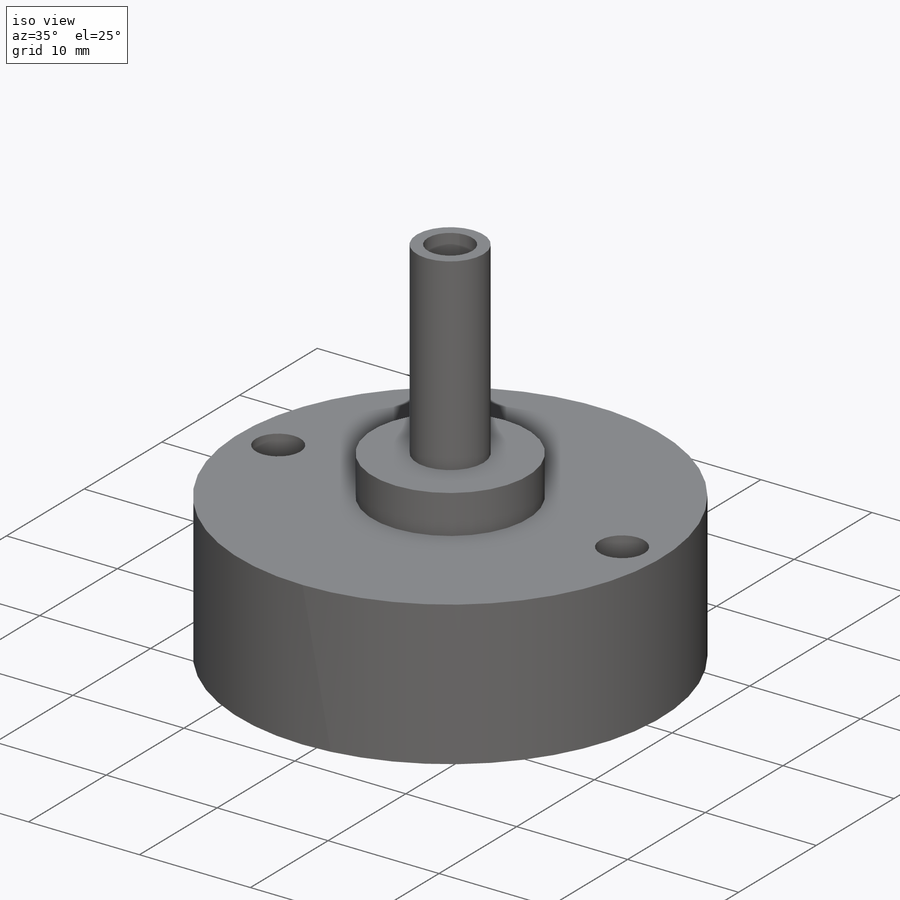
[diagram: iso view]
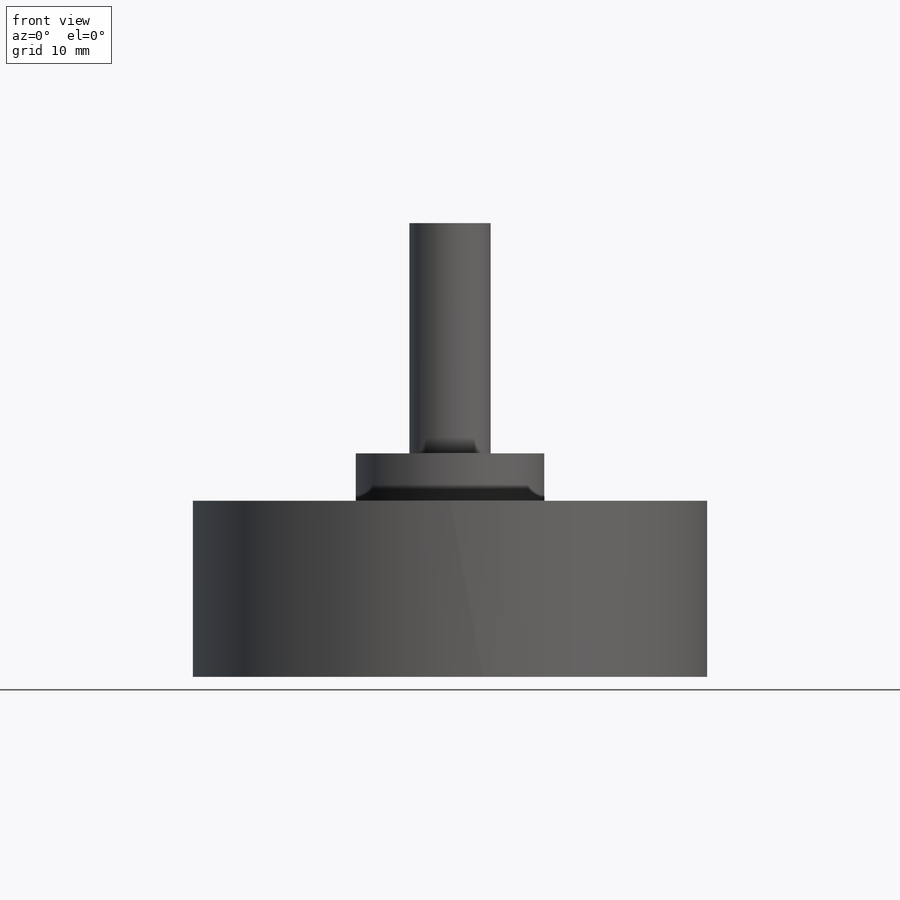
[diagram: front view]
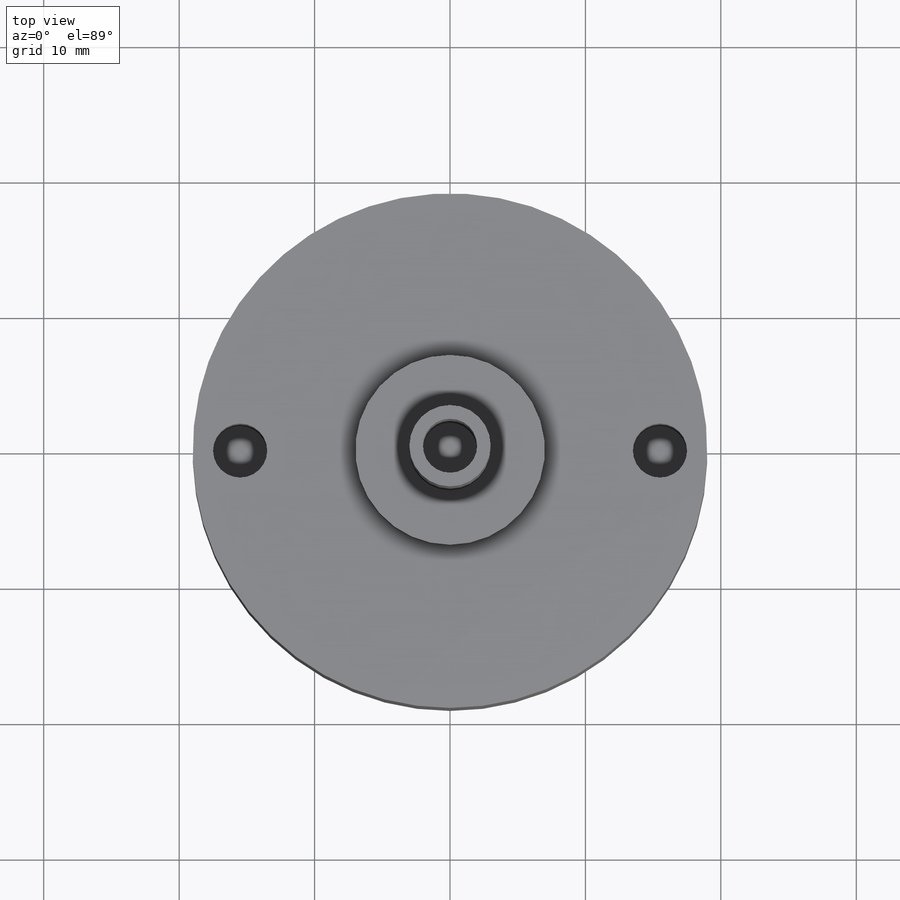
[diagram: top view]
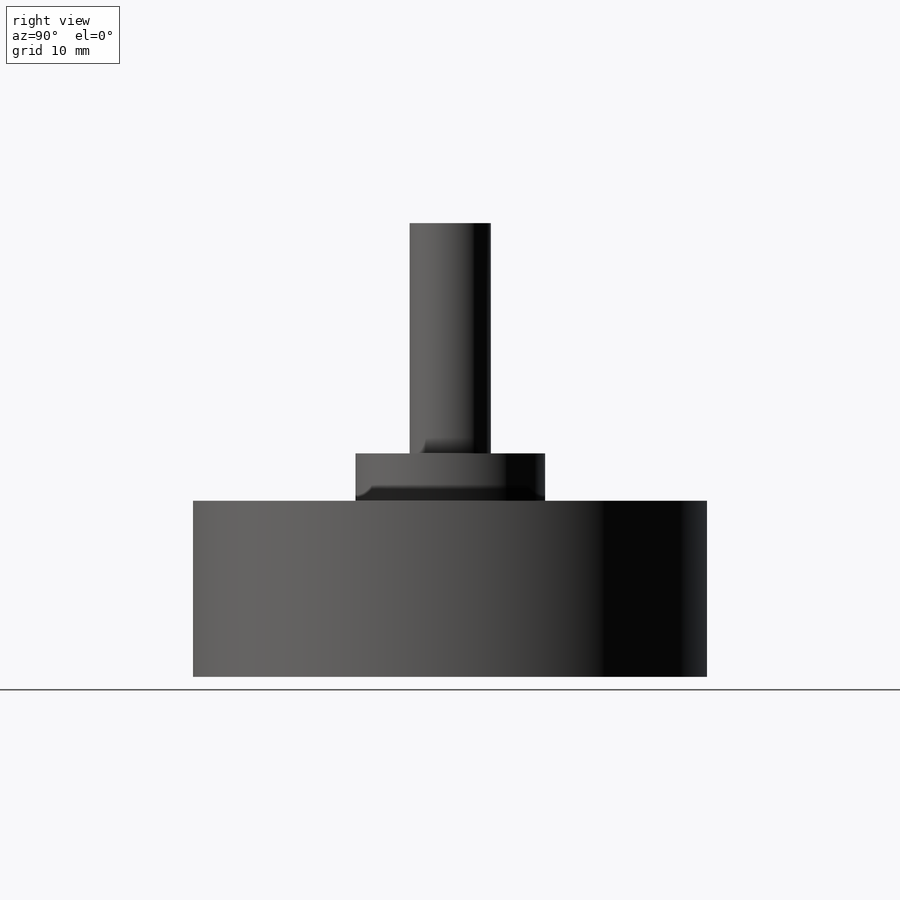
[diagram: right view]
SOLIDWORKS PART (.sldprt)
format: sldprt  version: not decoded by parser v0  size: 157,696 bytes
history: native  units: mm
features: sketch x4, plane x3, extrude x3, material x1, cut_extrude x1 (+10 scaffold rows collapsed)
feature tree (22):
  scaffold x10  (default folders/planes/origin — collapsed)
  material  "Malzeme <belirli değil>"
  plane  "Ön Düzlem"
  plane  "Üst Düzlem"
  plane  "Sağ Düzlem"
  sketch  "Çizim1"  dims[D1=38.0mm]
  extrude  "Yükseklik-Ekstrüzyon1"  Depth=13mm
  sketch  "Çizim2"  dims[c1.D1=~1.438285mm c1.D2=~1.438285mm c1.D3=4.0mm c2.D1=31.0mm c2.D2=15.5mm]
  cut_extrude  "Kes-Ekstrüzyon1"  Depth=10mm
  sketch  "Çizim3"  dims[D1=14.0mm]
  extrude  "Yükseklik-Ekstrüzyon2"  Depth=3.5mm
  sketch  "Çizim4"  dims[D1=6.0mm D2=4.0mm]
  extrude  "Yükseklik-Ekstrüzyon3"  Depth=17mm
decode coverage: 8 of 8 modeling features carry decoded parameters
note: ~ marks probable driven/reference dimensions
note: suppression state not decoded; provenance and decode notes live in map.json
